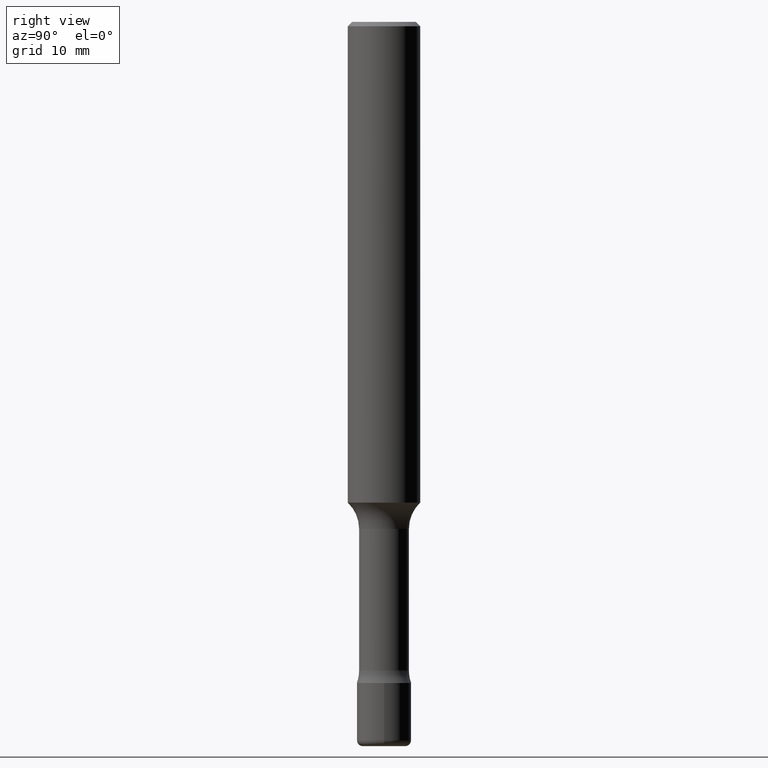
[diagram: clean part render]
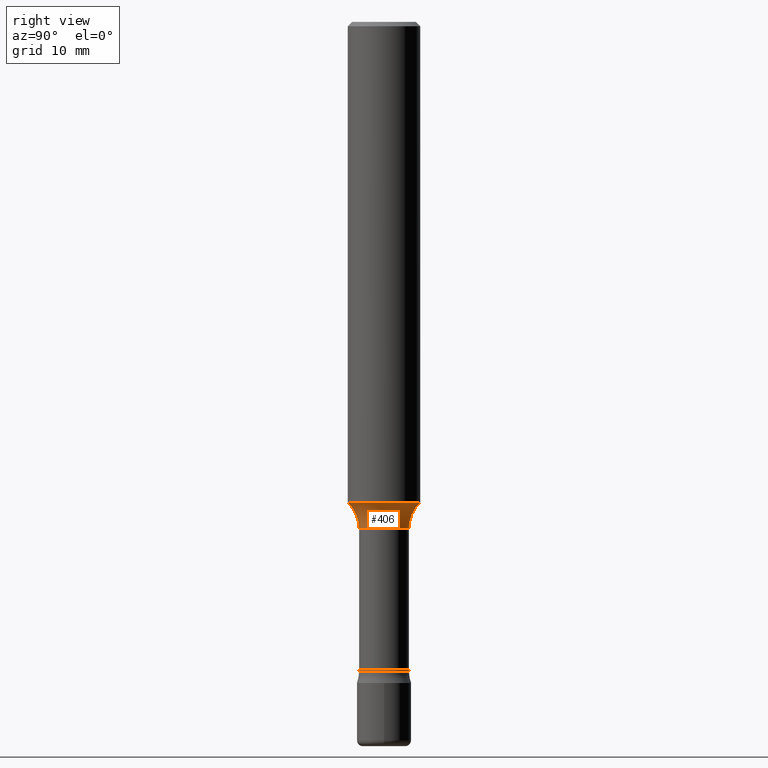
[diagram: same view with one face highlighted and labeled with its STEP entity id]
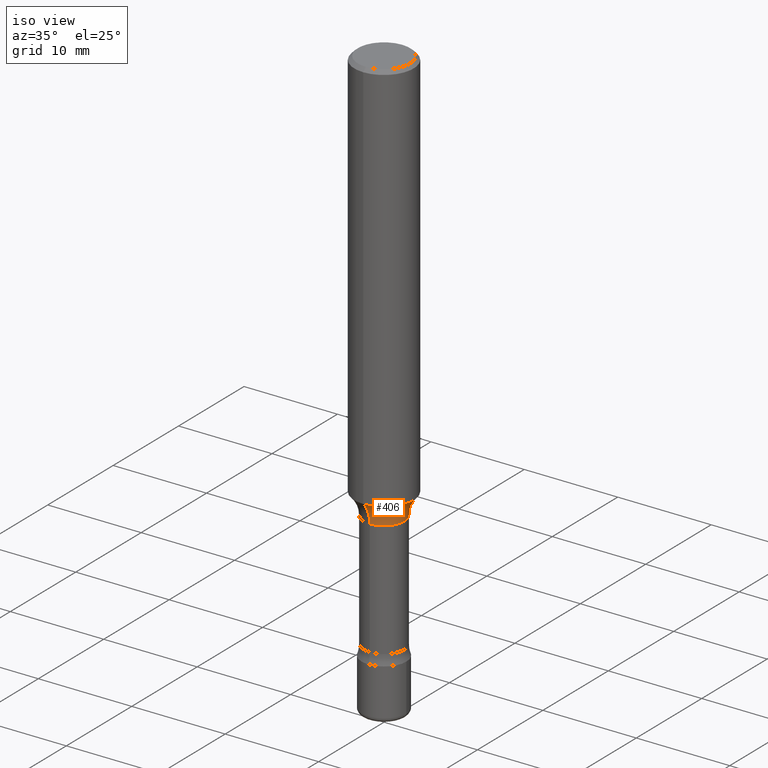
[diagram: same view with one face highlighted and labeled with its STEP entity id]
A machine part, right view. The second image highlights one B-rep face of the part: STEP entity #406.
A second angle (iso view) of the same face is appended — the face is thin or edge-on in the first view.
In plain terms, the highlighted toroidal blend (fillet) surface has major radius 5.3594 mm and minor (blend) radius 3.175 mm.
Its self-contained STEP definition (entity closure, byte-faithful):
#5 = CARTESIAN_POINT ( 'NONE',  ( 7.496225862269470868E-16, 0.08599999999999387301, -1.750000000000000444 ) ) ;
#21 = DIRECTION ( 'NONE',  ( -6.982962677686265922E-15, -1.000000000000000000, 4.370956789862821150E-15 ) ) ;
#45 = VERTEX_POINT ( 'NONE', #341 ) ;
#59 = ORIENTED_EDGE ( 'NONE', *, *, #492, .T. ) ;
#88 = AXIS2_PLACEMENT_3D ( 'NONE', #362, #207, #164 ) ;
#102 = CIRCLE ( 'NONE', #318, 0.08599999999999997924 ) ;
#118 = CARTESIAN_POINT ( 'NONE',  ( -8.728703347107426139E-16, -0.1250000000000057732, -1.659286164230586946 ) ) ;
#125 = CIRCLE ( 'NONE', #481, 0.1250000000000000000 ) ;
#128 = DIRECTION ( 'NONE',  ( -1.000000000000000000, 6.982962677686265922E-15, -4.883557194083112340E-29 ) ) ;
#137 = EDGE_CURVE ( 'NONE', #242, #45, #125, .T. ) ;
#149 = EDGE_CURVE ( 'NONE', #45, #440, #497, .T. ) ;
#164 = DIRECTION ( 'NONE',  ( -6.982962677686265133E-15, -1.000000000000000000, 3.490984976806744373E-15 ) ) ;
#180 = CARTESIAN_POINT ( 'NONE',  ( -6.005347902809759284E-16, -0.08600000000000609934, -1.750000000000000000 ) ) ;
#185 = FACE_OUTER_BOUND ( 'NONE', #396, .T. ) ;
#190 = VERTEX_POINT ( 'NONE', #180 ) ;
#195 = ORIENTED_EDGE ( 'NONE', *, *, #149, .F. ) ;
#204 = CIRCLE ( 'NONE', #402, 0.1250000000000000000 ) ;
#207 = DIRECTION ( 'NONE',  ( -2.445815413942617356E-29, 3.490984976806744767E-15, 1.000000000000000000 ) ) ;
#214 = CARTESIAN_POINT ( 'NONE',  ( 4.058307676616892084E-29, -5.792543071552269499E-15, -1.659286164230587390 ) ) ;
#225 = DIRECTION ( 'NONE',  ( 7.105427357601001859E-15, 1.000000000000000000, 0.000000000000000000 ) ) ;
#242 = VERTEX_POINT ( 'NONE', #118 ) ;
#247 = ORIENTED_EDGE ( 'NONE', *, *, #137, .F. ) ;
#292 = DIRECTION ( 'NONE',  ( -6.982962677686266711E-15, -1.000000000000000000, 0.000000000000000000 ) ) ;
#305 = EDGE_CURVE ( 'NONE', #190, #440, #102, .T. ) ;
#318 = AXIS2_PLACEMENT_3D ( 'NONE', #393, #320, #357 ) ;
#320 = DIRECTION ( 'NONE',  ( -2.445815413942617356E-29, 3.490984976806744767E-15, 1.000000000000000000 ) ) ;
#341 = CARTESIAN_POINT ( 'NONE',  ( 8.881784197001654642E-16, 0.1249999999999941713, -1.659286164230588057 ) ) ;
#357 = DIRECTION ( 'NONE',  ( -6.982962677686266711E-15, -1.000000000000000000, 3.176567434493329957E-15 ) ) ;
#362 = CARTESIAN_POINT ( 'NONE',  ( 4.279570410823989044E-29, -6.110092342975505460E-15, -1.750000000000000222 ) ) ;
#387 = AXIS2_PLACEMENT_3D ( 'NONE', #418, #456, #225 ) ;
#391 = ORIENTED_EDGE ( 'NONE', *, *, #305, .T. ) ;
#393 = CARTESIAN_POINT ( 'NONE',  ( 4.280176974399580513E-29, -6.109223709411804427E-15, -1.750000000000000222 ) ) ;
#396 = EDGE_LOOP ( 'NONE', ( #195, #247, #59, #391 ) ) ;
#402 = AXIS2_PLACEMENT_3D ( 'NONE', #483, #128, #292 ) ;
#406 = ADVANCED_FACE ( 'NONE', ( #185 ), #444, .F. ) ;
#418 = CARTESIAN_POINT ( 'NONE',  ( 1.499245172453853942E-15, 0.2109999999999939146, -1.750000000000001110 ) ) ;
#440 = VERTEX_POINT ( 'NONE', #5 ) ;
#444 = TOROIDAL_SURFACE ( 'NONE', #88, 0.2110000000000000209, 0.1250000000000000000 ) ;
#456 = DIRECTION ( 'NONE',  ( 1.000000000000000000, -7.105427357601001070E-15, 4.926309429860291398E-29 ) ) ;
#481 = AXIS2_PLACEMENT_3D ( 'NONE', #214, #498, #21 ) ;
#483 = CARTESIAN_POINT ( 'NONE',  ( -1.473405124991759464E-15, -0.2110000000000061271, -1.749999999999999334 ) ) ;
#492 = EDGE_CURVE ( 'NONE', #242, #190, #204, .T. ) ;
#497 = CIRCLE ( 'NONE', #387, 0.1250000000000000000 ) ;
#498 = DIRECTION ( 'NONE',  ( -2.445815413942617356E-29, 3.490984976806744767E-15, 1.000000000000000000 ) ) ;